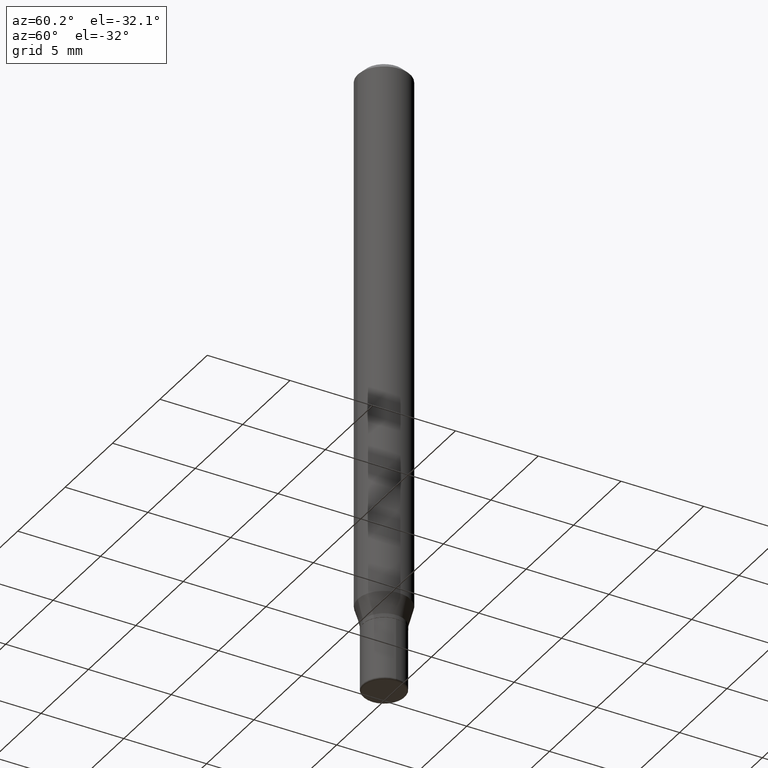
[diagram: clean part render]
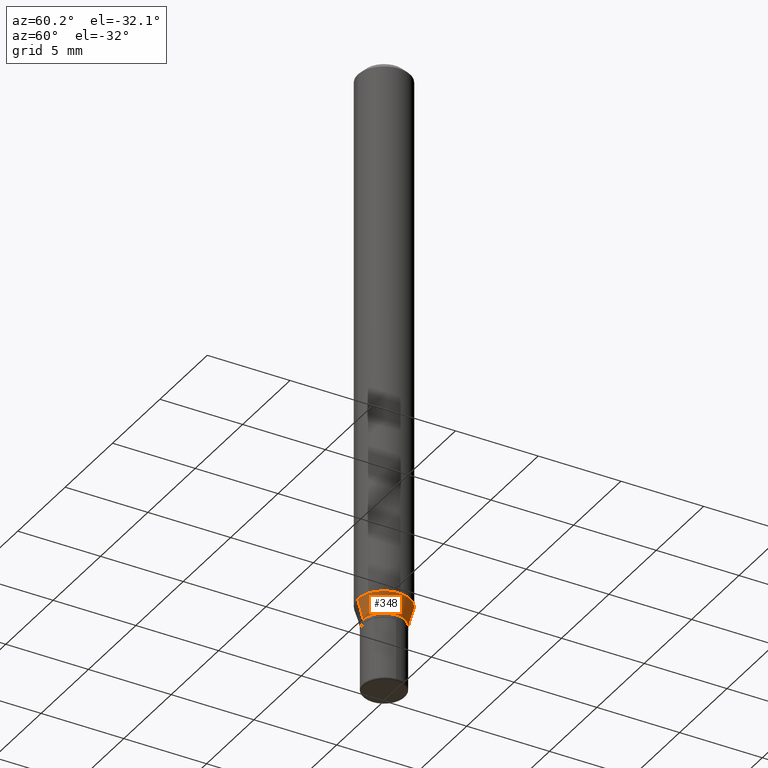
[diagram: same view with one face highlighted and labeled with its STEP entity id]
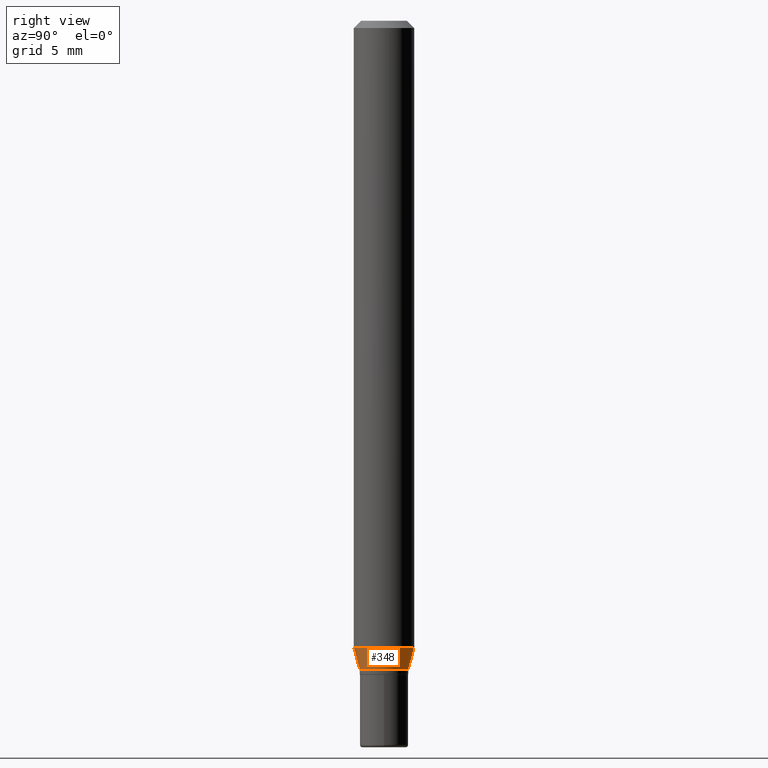
[diagram: same view with one face highlighted and labeled with its STEP entity id]
A machine part, auxiliary view. The second image highlights one B-rep face of the part: STEP entity #348.
A second angle (right view) of the same face is appended — the face is thin or edge-on in the first view.
In plain terms, the highlighted conical surface has half-angle 15 deg.
Its self-contained STEP definition (entity closure, byte-faithful):
#10 = DIRECTION ( 'NONE',  ( 1.839019923739594399E-15, 0.2588190451025241257, 0.9659258262890673130 ) ) ;
#13 = DIRECTION ( 'NONE',  ( -6.982962677686265133E-15, -1.000000000000000000, 5.463695987328528015E-15 ) ) ;
#29 = CARTESIAN_POINT ( 'NONE',  ( -3.491481338842803513E-16, -0.05000000000000465877, -1.339999999999999636 ) ) ;
#36 = VERTEX_POINT ( 'NONE', #306 ) ;
#38 = EDGE_CURVE ( 'NONE', #263, #36, #147, .T. ) ;
#40 = ORIENTED_EDGE ( 'NONE', *, *, #38, .F. ) ;
#52 = CARTESIAN_POINT ( 'NONE',  ( 3.552713678800826532E-16, 0.04999999999999529821, -1.340000000000000080 ) ) ;
#62 = CIRCLE ( 'NONE', #495, 0.04999999999999998196 ) ;
#84 = ORIENTED_EDGE ( 'NONE', *, *, #332, .T. ) ;
#86 = CARTESIAN_POINT ( 'NONE',  ( 4.440892098500943678E-16, 0.06249999999999551747, -1.293349364905389098 ) ) ;
#90 = VECTOR ( 'NONE', #311, 39.37007874015748854 ) ;
#113 = VERTEX_POINT ( 'NONE', #143 ) ;
#140 = EDGE_CURVE ( 'NONE', #36, #252, #313, .T. ) ;
#143 = CARTESIAN_POINT ( 'NONE',  ( 3.996802888650884119E-16, 0.04999999999999529821, -1.340000000000000080 ) ) ;
#147 = LINE ( 'NONE', #29, #90 ) ;
#165 = DIRECTION ( 'NONE',  ( -2.445432708408292326E-29, 3.491533032914144486E-15, 1.000000000000000000 ) ) ;
#177 = DIRECTION ( 'NONE',  ( -6.982962677686265133E-15, -1.000000000000000000, 5.463695987328528015E-15 ) ) ;
#181 = AXIS2_PLACEMENT_3D ( 'NONE', #484, #404, #358 ) ;
#214 = FACE_OUTER_BOUND ( 'NONE', #337, .T. ) ;
#247 = LINE ( 'NONE', #52, #391 ) ;
#250 = CONICAL_SURFACE ( 'NONE', #371, 0.04999999999999998196, 0.2617993877991494633 ) ;
#252 = VERTEX_POINT ( 'NONE', #86 ) ;
#263 = VERTEX_POINT ( 'NONE', #367 ) ;
#295 = CARTESIAN_POINT ( 'NONE',  ( 3.276879829267111616E-29, -4.678654264104954108E-15, -1.339999999999999858 ) ) ;
#306 = CARTESIAN_POINT ( 'NONE',  ( -4.364351673553597698E-16, -0.06250000000000449640, -1.293349364905388654 ) ) ;
#307 = CARTESIAN_POINT ( 'NONE',  ( 3.276879829267111616E-29, -4.678654264104954108E-15, -1.339999999999999858 ) ) ;
#311 = DIRECTION ( 'NONE',  ( -1.807323732225324223E-15, -0.2588190451025173533, 0.9659258262890690894 ) ) ;
#313 = CIRCLE ( 'NONE', #181, 0.06250000000000000000 ) ;
#332 = EDGE_CURVE ( 'NONE', #263, #113, #62, .T. ) ;
#337 = EDGE_LOOP ( 'NONE', ( #84, #465, #430, #40 ) ) ;
#348 = ADVANCED_FACE ( 'NONE', ( #214 ), #250, .T. ) ;
#358 = DIRECTION ( 'NONE',  ( -6.982962677686265922E-15, -1.000000000000000000, 4.370956789862821150E-15 ) ) ;
#367 = CARTESIAN_POINT ( 'NONE',  ( -3.491481338842803513E-16, -0.05000000000000465877, -1.339999999999999636 ) ) ;
#371 = AXIS2_PLACEMENT_3D ( 'NONE', #295, #165, #13 ) ;
#391 = VECTOR ( 'NONE', #10, 39.37007874015748854 ) ;
#394 = EDGE_CURVE ( 'NONE', #113, #252, #247, .T. ) ;
#404 = DIRECTION ( 'NONE',  ( -2.445432708408292326E-29, 3.491533032914144486E-15, 1.000000000000000000 ) ) ;
#430 = ORIENTED_EDGE ( 'NONE', *, *, #140, .F. ) ;
#451 = DIRECTION ( 'NONE',  ( -2.445432708408292326E-29, 3.491533032914144486E-15, 1.000000000000000000 ) ) ;
#465 = ORIENTED_EDGE ( 'NONE', *, *, #394, .T. ) ;
#484 = CARTESIAN_POINT ( 'NONE',  ( 3.162798840338729731E-29, -4.515772030665694516E-15, -1.293349364905388876 ) ) ;
#495 = AXIS2_PLACEMENT_3D ( 'NONE', #307, #451, #177 ) ;